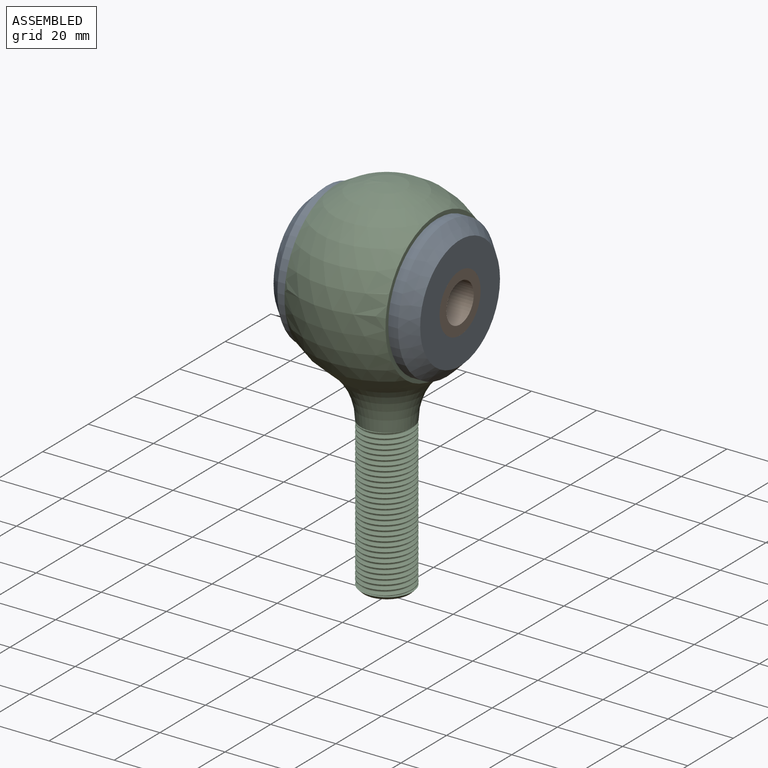
[diagram: assembled view]
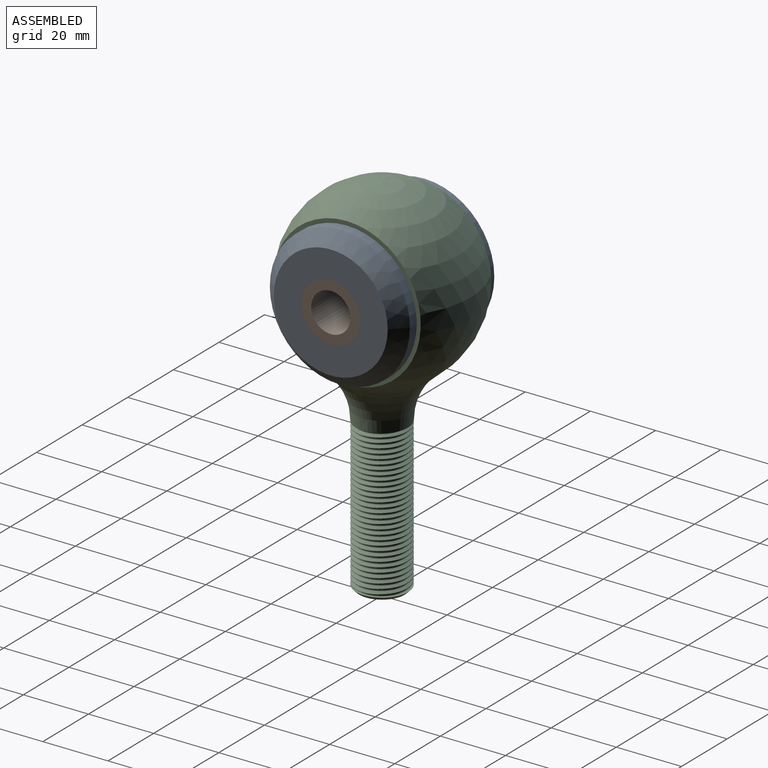
[diagram: assembled view, second angle]
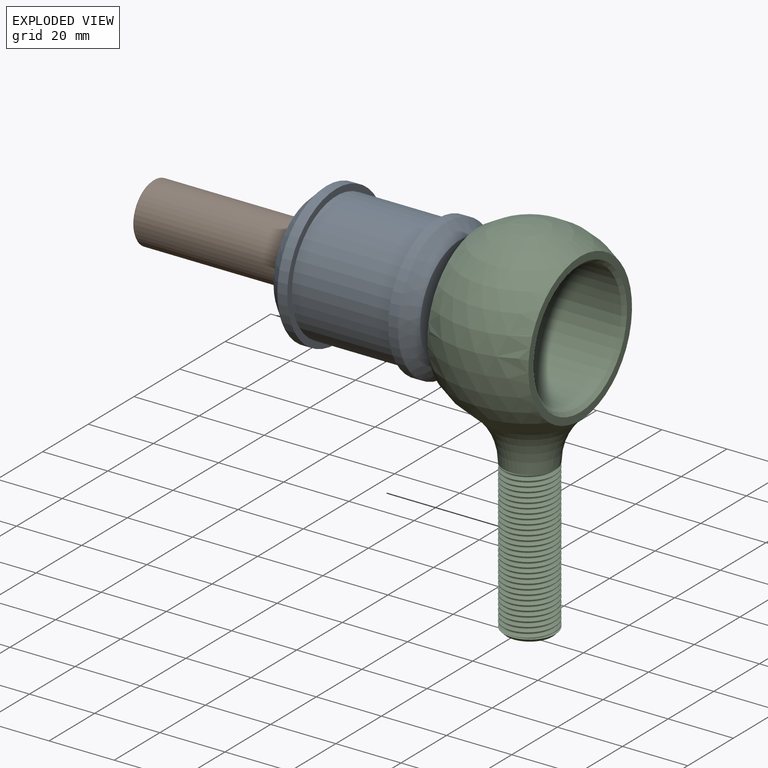
[diagram: exploded view]
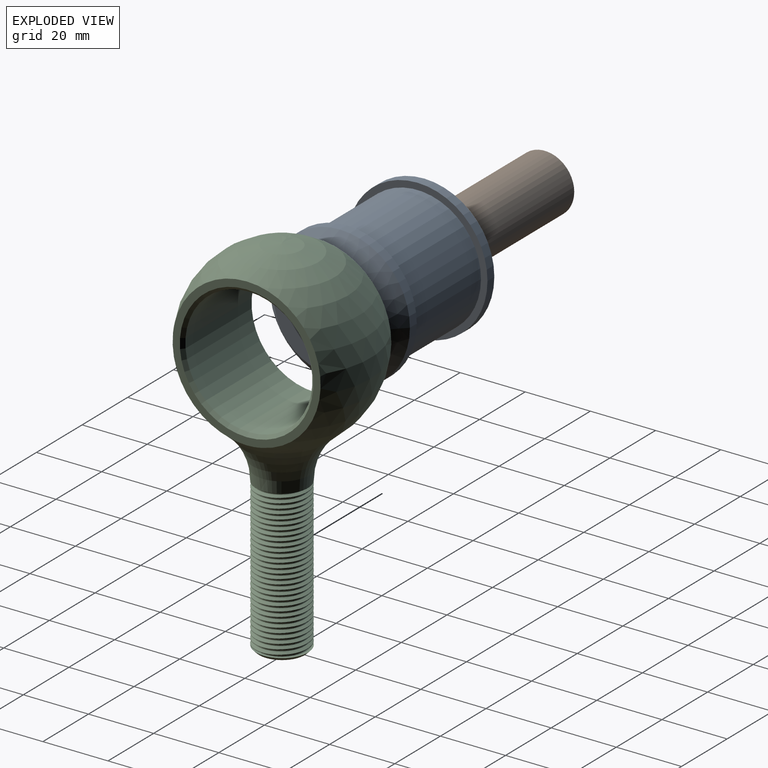
[diagram: exploded view, second angle]
ASSEMBLY  parts=3 mates=3
PART A: 10 faces, bbox 43x45x43 mm
  f0: cylinder r=9mm len=45mm, axis (0,1,0), area 2544.7mm2, adj f2,f5
  f1: cylinder r=19.5mm len=39mm, axis (0,1,0), area 3798.2mm2, adj f3,f6
  f2: plane 35x35mm, normal (0,-1,0), area 707.6mm2, adj f0,f9
  f3: plane 43x43mm, normal (0,1,0), area 257.6mm2, adj f1,f4
  f4: cylinder r=21.5mm len=43mm, axis (0,1,0), area 405.3mm2, adj f3,f9
  f5: plane 35x35mm, normal (0,1,0), area 707.6mm2, adj f0,f8
  f6: plane 43x43mm, normal (0,-1,0), area 257.6mm2, adj f1,f7
  f7: cylinder r=21.5mm len=43mm, axis (0,-1,0), area 405.3mm2, adj f6,f8
  f8: cone r=21.5mm half-angle=45deg, axis (0,-1,0), area 693.1mm2, adj f5,f7
  f9: cone r=17.5mm half-angle=45deg, axis (0,1,0), area 693.1mm2, adj f2,f4
PART B: 6 faces, bbox 18x45x18 mm
  f0: cylinder r=6mm len=44.7mm, axis (0,1,0), area 1685.2mm2, adj f2,f5
  f1: cylinder r=9mm len=44.7mm, axis (0,1,0), area 2527.7mm2, adj f2,f4
  f2: plane 18x18mm, normal (0,-1,0), area 141.4mm2, adj f0,f1
  f3: plane 17.4x17.4mm, normal (0,1,0), area 113.1mm2, adj f4,f5
  f4: cone r=9mm half-angle=45deg, axis (0,-1,0), area 23.6mm2, adj f1,f3
  f5: cone r=6.3mm half-angle=45deg, axis (0,1,0), area 16.4mm2, adj f0,f3
PART C: 16 faces, bbox 61.1x61.1x113 mm
  f0: cylinder r=8mm len=45.26mm, axis (0,0,1), area 717.6mm2, adj f2,f11,f12,f15
  f1: sphere r=27.5mm, area 4454.2mm2, adj f2,f5,f6
  f2: torus R=28mm, axis (0,0,1), area 1268.7mm2, adj f0,f1,f5,f6,f14
  f3: plane 14x14mm, normal (0,0,-1), area 153.9mm2, adj f4
  f4: cone r=8mm half-angle=45deg, axis (0,0,1), area 66.6mm2, adj f3,f13
  f5: plane 45.48x45.43mm, normal (-1,0,0), area 301mm2, adj f1,f2,f9
  f6: plane 45.93x45.88mm, normal (1,0,0), area 301mm2, adj f1,f2,f8
  f7: cylinder r=19.5mm len=39mm, axis (-1,0,0), area 3553.1mm2, adj f8,f9
  f8: cone r=20.5mm half-angle=45deg, axis (1,0,0), area 177.7mm2, adj f6,f7
  f9: cone r=19.5mm half-angle=45deg, axis (-1,0,0), area 177.7mm2, adj f5,f7
  f10: bspline ~46.63x16.6mm, area 575.7mm2, adj f11,f12,f13,f14
  f11: bspline ~46.97x18.48mm, area 1354.2mm2, adj f0,f10,f13,f14,f15
  f12: bspline ~46.47x18.48mm, area 1350.4mm2, adj f0,f10,f13,f14,f15
  f13: plane 16.1x16.1mm, normal (0,0,1), area 37.3mm2, adj f4,f10,f11,f12,f15
  f14: plane 16.43x16.43mm, normal (0,0,-1), area 22.6mm2, adj f2,f10,f11,f12
  f15: cone r=8mm half-angle=63.4deg, axis (0,0,1), area 16.4mm2, adj f0,f11,f12,f13
PLACE A rot(axis=(0.58,-0.58,0.58),120deg) t=(-0.29,-0.1,27.1)mm
PLACE B rot(axis=(-0.37,0.37,0.85),99.3deg) t=(-0.29,-0.1,27.1)mm
PLACE C t=(-0.29,-0.1,27.1)mm fixed
MATE planar A.f0 <-> C.f5  axis (1,0,0) through (-15.79,-0.1,27.1)mm
MATE cylindrical B.f1 <-> A.f0  axis (-1,0,0) through (-0.14,-0.1,27.1)mm
MATE cylindrical A.f1 <-> C.f7  axis (-1,0,0) through (-0.29,-0.1,27.1)mm
